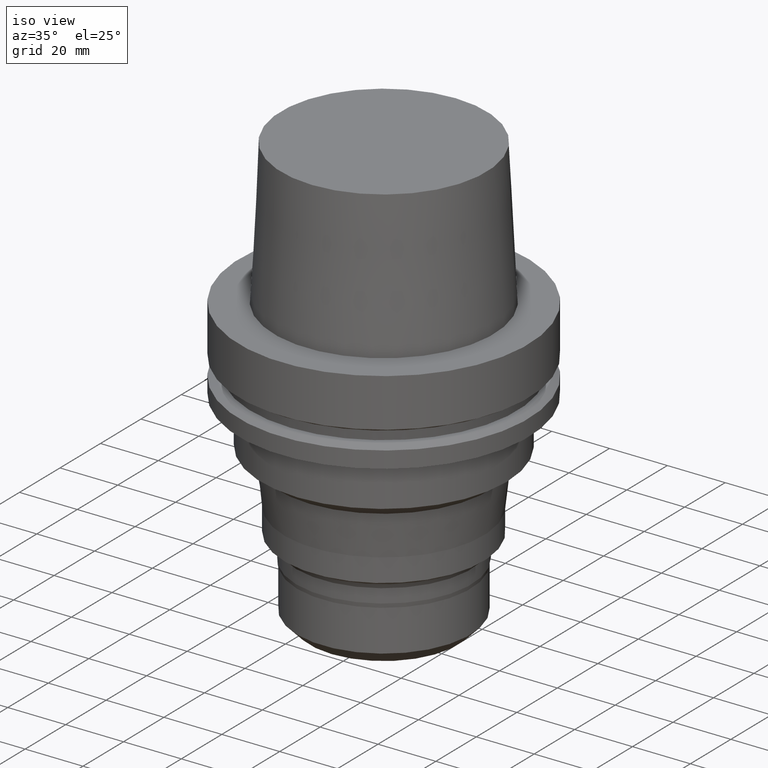
[diagram: clean part render]
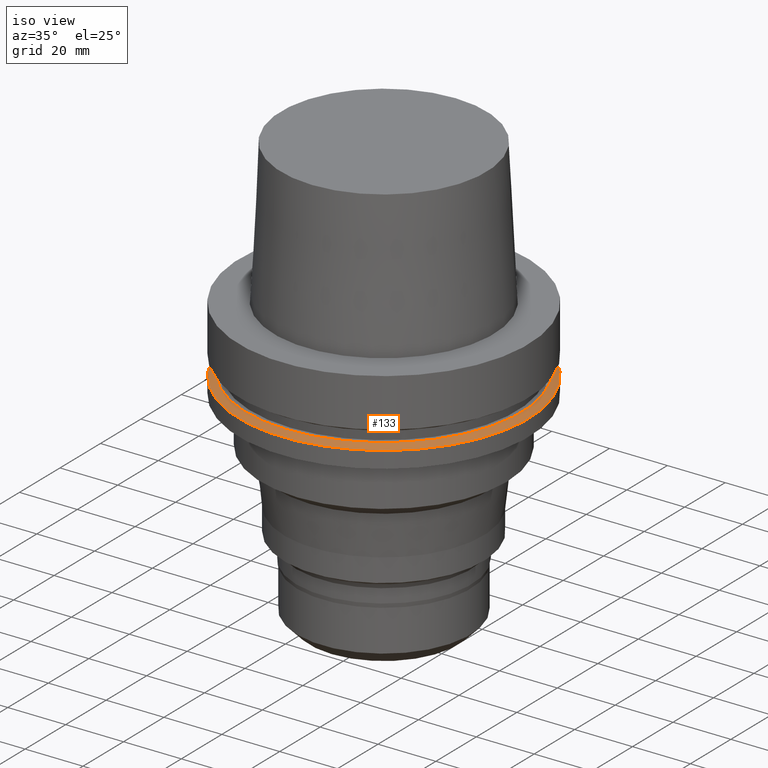
[diagram: same view with one face highlighted and labeled with its STEP entity id]
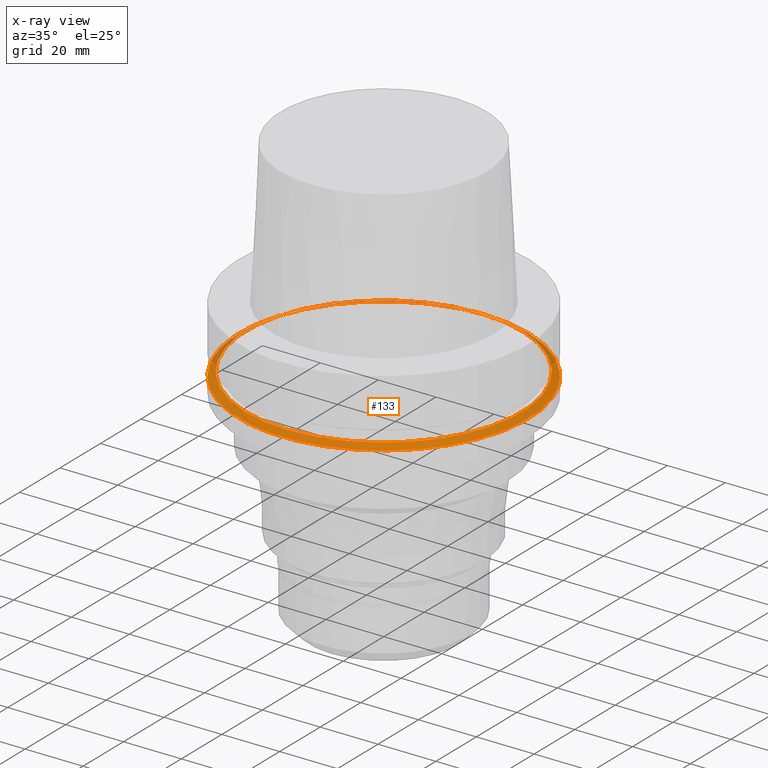
[diagram: x-ray of the same camera — body ghosted, the highlighted face saturated]
A machine part, iso view. The second image highlights one B-rep face of the part: STEP entity #133.
The next image is the same camera in x-ray: the body ghosted, the highlighted face saturated — about 12% of this face is hidden behind the body in this view.
In plain terms, the highlighted conical surface has half-angle 60 deg.
Its self-contained STEP definition (entity closure, byte-faithful):
#133=ADVANCED_FACE('Unnamed[1]',(#310,#311),#312,.T.);
#145=EDGE_CURVE('Unnamed[1]',#330,#330,#331,.T.);
#159=EDGE_CURVE('Unnamed[1]',#352,#352,#353,.T.);
#310=FACE_BOUND('',#537,.T.);
#311=FACE_BOUND('',#538,.T.);
#312=CONICAL_SURFACE('',#539,48.8112976320959,1.04719755119658);
#330=VERTEX_POINT('',#562);
#331=CIRCLE('',#563,47.6225952641917);
#352=VERTEX_POINT('',#590);
#353=CIRCLE('',#591,50.0000000000001);
#537=EDGE_LOOP('',(#775));
#538=EDGE_LOOP('',(#776));
#539=AXIS2_PLACEMENT_3D('',#777,#778,#779);
#562=CARTESIAN_POINT('',(1.33945743656736E-015,47.6225952641917,-21.8749999999991));
#563=AXIS2_PLACEMENT_3D('',#798,#799,#800);
#590=CARTESIAN_POINT('',(1.42350465640822E-015,50.0,-23.2475952641907));
#591=AXIS2_PLACEMENT_3D('',#822,#823,#824);
#775=ORIENTED_EDGE('',*,*,#159,.F.);
#776=ORIENTED_EDGE('',*,*,#145,.T.);
#777=CARTESIAN_POINT('',(1.38148104648779E-015,-3.46210012818342E-014,-22.5612976320949));
#778=DIRECTION('',(6.12323399573677E-017,5.75940563219809E-016,-1.0));
#779=DIRECTION('',(-4.00933410930822E-032,1.0,5.75940563219809E-016));
#798=CARTESIAN_POINT('',(1.33945743656736E-015,-3.50162679265999E-014,-21.8749999999991));
#799=DIRECTION('',(6.12323399573677E-017,5.75940563219809E-016,-1.0));
#800=DIRECTION('',(-4.00933410930822E-032,1.0,5.75940563219809E-016));
#822=CARTESIAN_POINT('',(1.42350465640822E-015,-3.42257346370685E-014,-23.2475952641908));
#823=DIRECTION('',(6.12323399573677E-017,5.75940563219809E-016,-1.0));
#824=DIRECTION('',(-4.00933410930822E-032,1.0,5.75940563219809E-016));